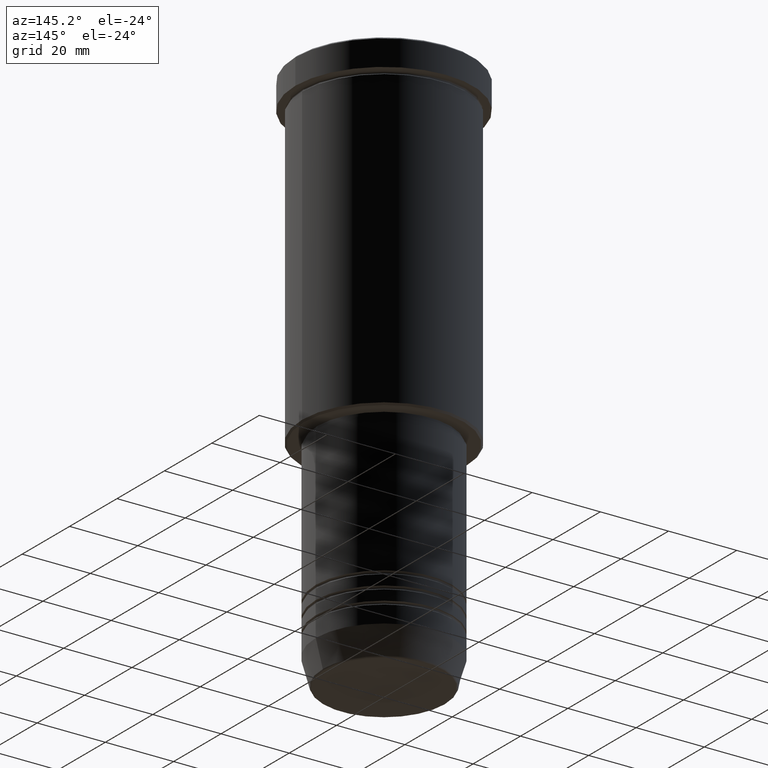
[diagram: clean part render]
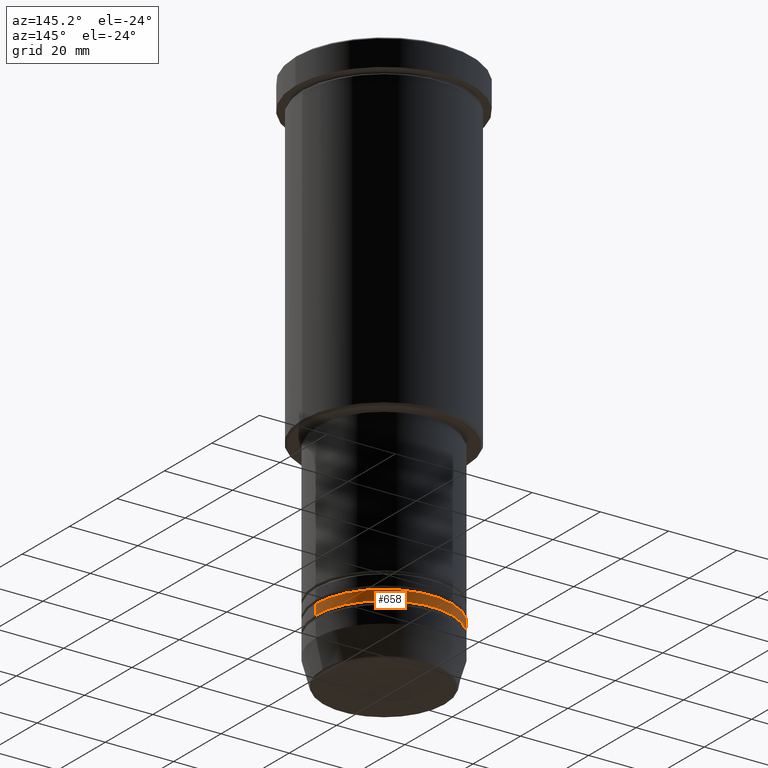
[diagram: same view with one face highlighted and labeled with its STEP entity id]
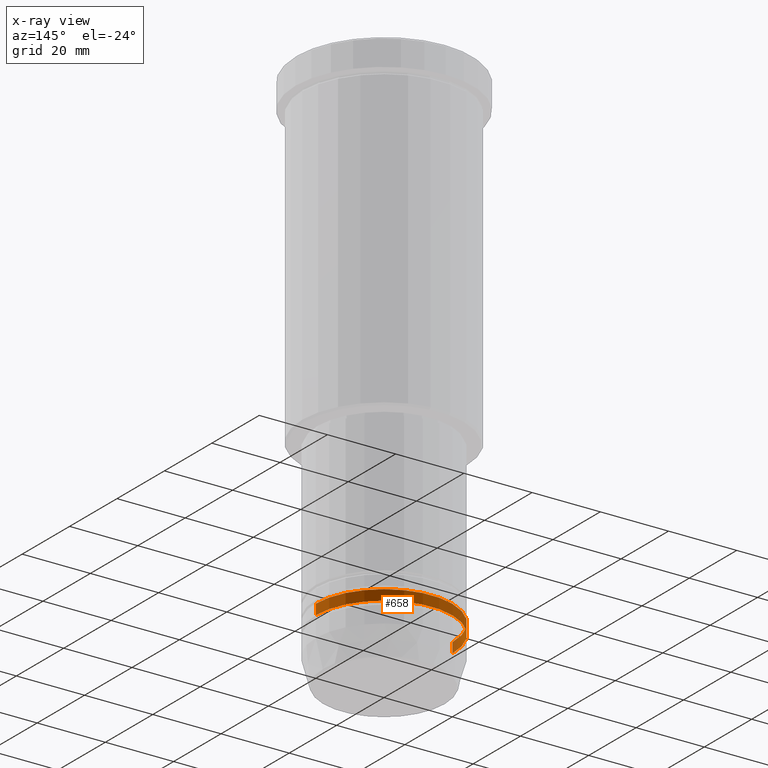
[diagram: x-ray of the same camera — body ghosted, the highlighted face saturated]
A machine part, auxiliary view. The second image highlights one B-rep face of the part: STEP entity #658.
The next image is the same camera in x-ray: the body ghosted, the highlighted face saturated — about 3% of this face is hidden behind the body in this view.
In plain terms, the highlighted cylindrical surface (partial cylindrical patch) has radius 20 mm, axis along (-0, -0, 1).
Its self-contained STEP definition (entity closure, byte-faithful):
#37 = EDGE_CURVE ( 'NONE', #1037, #612, #400, .T. ) ;
#145 = DIRECTION ( 'NONE',  ( -0.000000000000000000, -0.000000000000000000, 1.000000000000000000 ) ) ;
#154 = CARTESIAN_POINT ( 'NONE',  ( 0.000000000000000000, 0.000000000000000000, -145.9999999999999716 ) ) ;
#156 = AXIS2_PLACEMENT_3D ( 'NONE', #688, #1118, #693 ) ;
#164 = VERTEX_POINT ( 'NONE', #499 ) ;
#169 = LINE ( 'NONE', #543, #1042 ) ;
#238 = CARTESIAN_POINT ( 'NONE',  ( 0.000000000000000000, 0.000000000000000000, 0.000000000000000000 ) ) ;
#272 = CARTESIAN_POINT ( 'NONE',  ( -20.00000000000000000, 2.449293598294706513E-15, -143.0000000000000000 ) ) ;
#273 = EDGE_CURVE ( 'NONE', #164, #455, #507, .T. ) ;
#275 = ORIENTED_EDGE ( 'NONE', *, *, #273, .F. ) ;
#320 = CARTESIAN_POINT ( 'NONE',  ( 20.00000000000000355, 0.000000000000000000, -145.9999999999999716 ) ) ;
#348 = VECTOR ( 'NONE', #1004, 1000.000000000000000 ) ;
#372 = CARTESIAN_POINT ( 'NONE',  ( -20.00000000000000355, 2.449293598294706907E-15, 0.000000000000000000 ) ) ;
#400 = CIRCLE ( 'NONE', #567, 20.00000000000000355 ) ;
#412 = ORIENTED_EDGE ( 'NONE', *, *, #801, .F. ) ;
#455 = VERTEX_POINT ( 'NONE', #272 ) ;
#499 = CARTESIAN_POINT ( 'NONE',  ( 20.00000000000000000, 0.000000000000000000, -143.0000000000000000 ) ) ;
#507 = CIRCLE ( 'NONE', #156, 20.00000000000000000 ) ;
#526 = ORIENTED_EDGE ( 'NONE', *, *, #37, .T. ) ;
#543 = CARTESIAN_POINT ( 'NONE',  ( 20.00000000000000355, 0.000000000000000000, 0.000000000000000000 ) ) ;
#567 = AXIS2_PLACEMENT_3D ( 'NONE', #154, #907, #645 ) ;
#612 = VERTEX_POINT ( 'NONE', #795 ) ;
#642 = ORIENTED_EDGE ( 'NONE', *, *, #700, .T. ) ;
#645 = DIRECTION ( 'NONE',  ( 1.000000000000000000, 0.000000000000000000, 0.000000000000000000 ) ) ;
#658 = ADVANCED_FACE ( 'NONE', ( #813 ), #724, .T. ) ;
#688 = CARTESIAN_POINT ( 'NONE',  ( 0.000000000000000000, 0.000000000000000000, -143.0000000000000000 ) ) ;
#693 = DIRECTION ( 'NONE',  ( 1.000000000000000000, 0.000000000000000000, 0.000000000000000000 ) ) ;
#700 = EDGE_CURVE ( 'NONE', #612, #455, #846, .T. ) ;
#724 = CYLINDRICAL_SURFACE ( 'NONE', #1149, 20.00000000000000355 ) ;
#795 = CARTESIAN_POINT ( 'NONE',  ( -20.00000000000000355, 2.449293598294706907E-15, -145.9999999999999716 ) ) ;
#801 = EDGE_CURVE ( 'NONE', #1037, #164, #169, .T. ) ;
#813 = FACE_OUTER_BOUND ( 'NONE', #1068, .T. ) ;
#846 = LINE ( 'NONE', #372, #348 ) ;
#907 = DIRECTION ( 'NONE',  ( -0.000000000000000000, -0.000000000000000000, 1.000000000000000000 ) ) ;
#909 = DIRECTION ( 'NONE',  ( -0.000000000000000000, -0.000000000000000000, 1.000000000000000000 ) ) ;
#1004 = DIRECTION ( 'NONE',  ( -0.000000000000000000, -0.000000000000000000, 1.000000000000000000 ) ) ;
#1037 = VERTEX_POINT ( 'NONE', #320 ) ;
#1042 = VECTOR ( 'NONE', #909, 1000.000000000000000 ) ;
#1068 = EDGE_LOOP ( 'NONE', ( #526, #642, #275, #412 ) ) ;
#1118 = DIRECTION ( 'NONE',  ( -0.000000000000000000, -0.000000000000000000, 1.000000000000000000 ) ) ;
#1149 = AXIS2_PLACEMENT_3D ( 'NONE', #238, #145, #1156 ) ;
#1156 = DIRECTION ( 'NONE',  ( 1.000000000000000000, 0.000000000000000000, 0.000000000000000000 ) ) ;